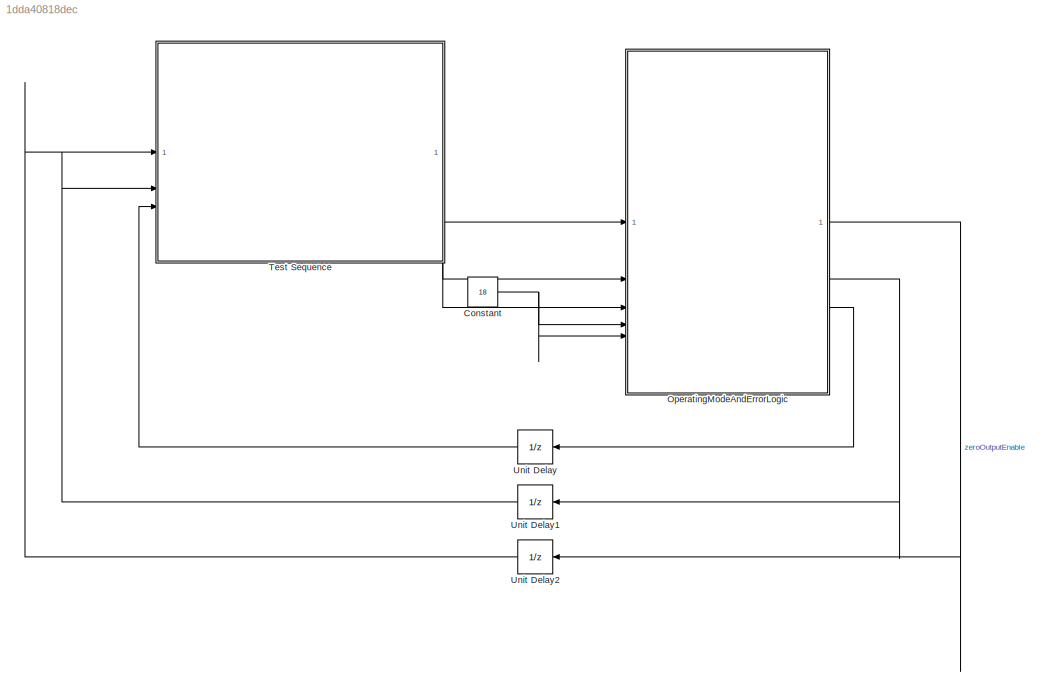
MODEL slx_1dda40818dec
KIND model
CONFIG AbsTol = auto
CONFIG EnableMultiTasking = off
CONFIG FixedStep = ts100ms
CONFIG MaxStep = auto
CONFIG MinStep = auto
CONFIG RelTol = 1e-3
CONFIG SampleTimeConstraint = Unconstrained
CONFIG SolverName = FixedStepDiscrete
CONFIG StartTime = 0.0
CONFIG StopTime = 10
BLOCK [Constant] Constant
  Value = 18
BLOCK [SubSystem] OperatingModeAndErrorLogic
  ReferencedSubsystem = OperatingModeAndErrorLogic
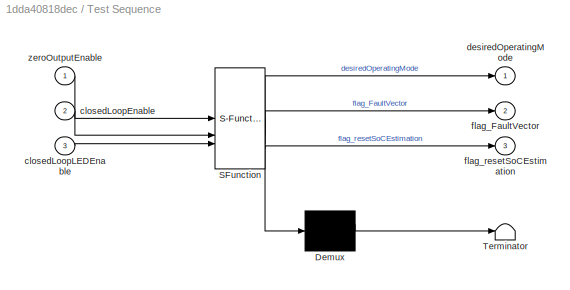
BLOCK [SubSystem] Test Sequence
  ErrorFcn = Stateflow.Translate.translate
  PermitHierarchicalResolution = ExplicitOnly
  SFBlockType = Test Sequence
  TreatAsAtomicUnit = on
BLOCK [Demux] Test Sequence/ Demux 
  Outputs = 1
BLOCK [S-Function] Test Sequence/ SFunction 
  EnableBusSupport = on
  FunctionName = sf_sfun
  PortCounts = [3 4]
  SFcnIsStateOwnerBlock = off
  SFunctionDeploymentMode = off
  Tag = Stateflow S-Function 4
BLOCK [Terminator] Test Sequence/ Terminator 
BLOCK [Inport] Test Sequence/closedLoopEnable
  Port = 2
BLOCK [Inport] Test Sequence/closedLoopLEDEnable
  Port = 3
BLOCK [Outport] Test Sequence/desiredOperatingMode
BLOCK [Outport] Test Sequence/flag_FaultVector
  Port = 2
BLOCK [Outport] Test Sequence/flag_resetSoCEstimation
  Port = 3
BLOCK [Inport] Test Sequence/zeroOutputEnable
BLOCK [UnitDelay] Unit Delay
  HasFrameUpgradeWarning = on
  NameLocation = top
  SampleTime = -1
BLOCK [UnitDelay] Unit Delay1
  HasFrameUpgradeWarning = on
  NameLocation = top
  SampleTime = -1
BLOCK [UnitDelay] Unit Delay2
  HasFrameUpgradeWarning = on
  NameLocation = top
  SampleTime = -1
NET Constant:1 -> OperatingModeAndErrorLogic:4, OperatingModeAndErrorLogic:5
LINE OperatingModeAndErrorLogic:1 -> Unit Delay2:1
LINE OperatingModeAndErrorLogic:2 -> Unit Delay1:1
LINE OperatingModeAndErrorLogic:3 -> Unit Delay:1
LINE Test Sequence:1 -> OperatingModeAndErrorLogic:1
LINE Test Sequence:2 -> OperatingModeAndErrorLogic:2
LINE Test Sequence:3 -> OperatingModeAndErrorLogic:3
LINE Unit Delay1:1 -> Test Sequence:2
LINE Unit Delay2:1 -> Test Sequence:1
LINE Unit Delay:1 -> Test Sequence:3
note: NET lines group one-source signal fan-out (src -> all destinations, sorted); 1:1 wires keep LINE
CHART Test Sequence states=13 transitions=13
  STATE_LABEL 'step_1\nflag_resetSoCEstimation=true;\ndesiredOperatingMode = AllClosedLoop;\nflag_FaultVector =[false false false];'
  STATE_LABEL 'verifyStep1\nverify(zeroOutputEnable ==true)'
  STATE_LABEL 'step_2\nflag_resetSoCEstimation=false;'
  STATE_LABEL 'step_2_1\ndesiredOperatingMode =AllOpenLoop;'
  STATE_LABEL 'verifyStep2_1\nverify((closedLoopEnable && closedLoopLEDEnable) == false )\nverify(zeroOutputEnable==false)'
  STATE_LABEL 'step_2_2\ndesiredOperatingMode =VoltClosed_CurrOpen;'
  STATE_LABEL 'verifyStep2_2\nverify(closedLoopEnable==true &&closedLoopLEDEnable==false)\nverify(zeroOutputEnable==false)'
  STATE_LABEL 'step_2_3\ndesiredOperatingMode =VoltOpen_CurrClosed;'
  STATE_LABEL 'verifyStep2_3\nverify(closedLoopEnable==false &&closedLoopLEDEnable == true)\nverify(zeroOutputEnable==false)'
  STATE_LABEL 'step_2_4\ndesiredOperatingMode =AllClosedLoop;'
  STATE_LABEL 'verifyStep2_4\nverify(closedLoopEnable&&closedLoopLEDEnable == true)\nverify(zeroOutputEnable==false)'
  STATE_LABEL 'step_3\n\nflag_FaultVector =[true true true];\n'
  STATE_LABEL 'verifyStep3\nverify(zeroOutputEnable==true)'
